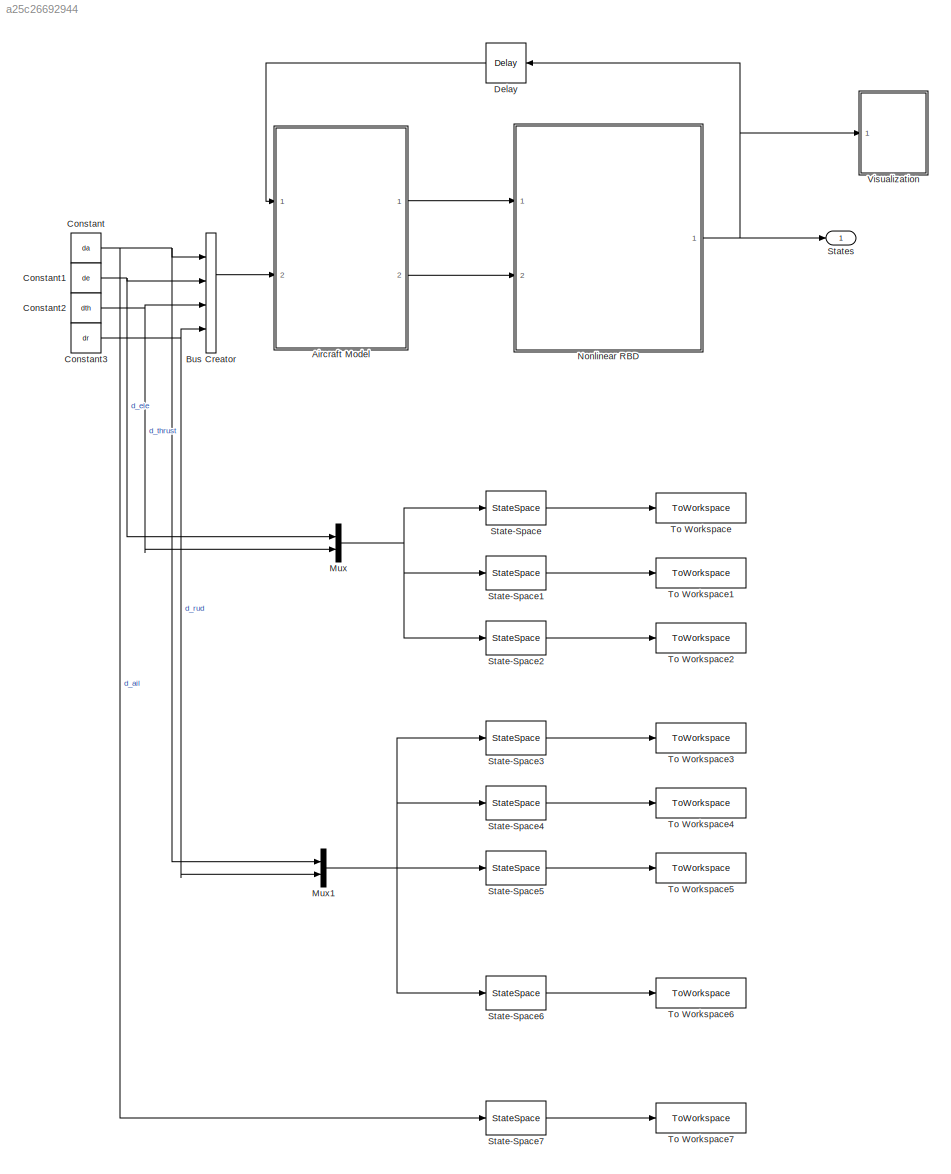
MODEL slx_a25c26692944
KIND model
CONFIG AbsTol = auto
CONFIG EnableMultiTasking = off
CONFIG FixedStep = dt
CONFIG MaxStep = auto
CONFIG MinStep = auto
CONFIG RelTol = 1e-3
CONFIG SampleTimeConstraint = Unconstrained
CONFIG Solver = ode4
CONFIG SolverName = ode4
CONFIG StartTime = 0.0
CONFIG StopTime = tfinal
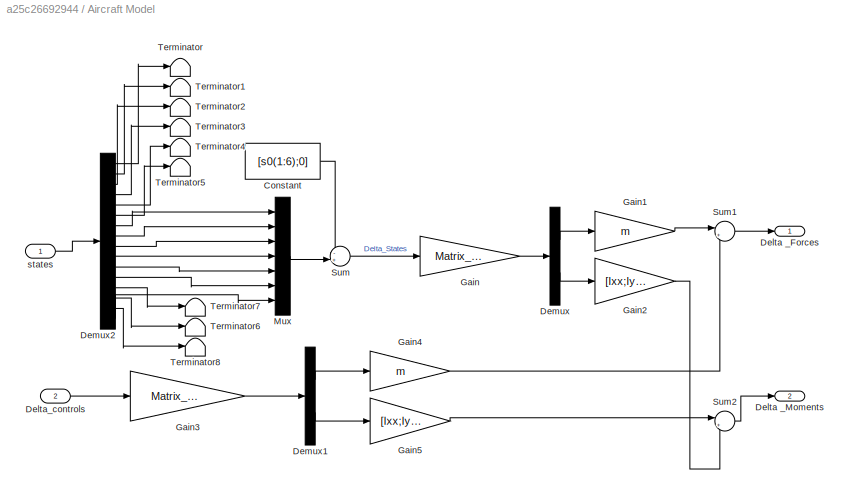
BLOCK [SubSystem] Aircraft Model
  Ports = [2, 2]
  RequestExecContextInheritance = off
BLOCK [Constant] Aircraft Model/Constant
  Value = [s0(1:6);0]
BLOCK [Outport] Aircraft Model/Delta _Forces
  IconDisplay = Port number
BLOCK [Outport] Aircraft Model/Delta _Moments
  IconDisplay = Port number
  Port = 2
BLOCK [Inport] Aircraft Model/Delta_controls
  IconDisplay = Port number
  Port = 2
BLOCK [Demux] Aircraft Model/Demux
  DisplayOption = bar
  Outputs = 2
  Ports = [1, 2]
BLOCK [Demux] Aircraft Model/Demux1
  DisplayOption = bar
  Outputs = 2
  Ports = [1, 2]
BLOCK [Demux] Aircraft Model/Demux2
  DisplayOption = bar
  Outputs = 16
  Ports = [1, 16]
BLOCK [Gain] Aircraft Model/Gain
  Gain = Matrix_states
  Multiplication = Matrix(K*u)
  OutDataTypeStr = Inherit: Inherit via internal rule
  ParamDataTypeStr = Inherit: Inherit via internal rule
  SaturateOnIntegerOverflow = off
BLOCK [Gain] Aircraft Model/Gain1
  Gain = m
  OutDataTypeStr = Inherit: Inherit via internal rule
  ParamDataTypeStr = Inherit: Inherit via internal rule
  SaturateOnIntegerOverflow = off
BLOCK [Gain] Aircraft Model/Gain2
  Gain = [Ixx;Iyy;Izz]
  OutDataTypeStr = Inherit: Inherit via internal rule
  ParamDataTypeStr = Inherit: Inherit via internal rule
  SaturateOnIntegerOverflow = off
BLOCK [Gain] Aircraft Model/Gain3
  Gain = Matrix_Controls
  Multiplication = Matrix(K*u)
  OutDataTypeStr = Inherit: Inherit via internal rule
  ParamDataTypeStr = Inherit: Inherit via internal rule
  SaturateOnIntegerOverflow = off
BLOCK [Gain] Aircraft Model/Gain4
  Gain = m
  OutDataTypeStr = Inherit: Inherit via internal rule
  ParamDataTypeStr = Inherit: Inherit via internal rule
  SaturateOnIntegerOverflow = off
BLOCK [Gain] Aircraft Model/Gain5
  Gain = [Ixx;Iyy;Izz]
  OutDataTypeStr = Inherit: Inherit via internal rule
  ParamDataTypeStr = Inherit: Inherit via internal rule
  SaturateOnIntegerOverflow = off
BLOCK [Mux] Aircraft Model/Mux
  DisplayOption = bar
  Inputs = 7
  Ports = [7, 1]
BLOCK [Sum] Aircraft Model/Sum
  IconShape = round
  InputSameDT = off
  Inputs = -+|
  OutDataTypeStr = Inherit: Inherit via internal rule
  Ports = [2, 1]
  SaturateOnIntegerOverflow = off
BLOCK [Sum] Aircraft Model/Sum1
  IconShape = round
  InputSameDT = off
  Inputs = |++
  OutDataTypeStr = Inherit: Inherit via internal rule
  Ports = [2, 1]
  SaturateOnIntegerOverflow = off
BLOCK [Sum] Aircraft Model/Sum2
  IconShape = round
  InputSameDT = off
  Inputs = |++
  OutDataTypeStr = Inherit: Inherit via internal rule
  Ports = [2, 1]
  SaturateOnIntegerOverflow = off
BLOCK [Terminator] Aircraft Model/Terminator
BLOCK [Terminator] Aircraft Model/Terminator1
BLOCK [Terminator] Aircraft Model/Terminator2
BLOCK [Terminator] Aircraft Model/Terminator3
BLOCK [Terminator] Aircraft Model/Terminator4
BLOCK [Terminator] Aircraft Model/Terminator5
BLOCK [Terminator] Aircraft Model/Terminator6
BLOCK [Terminator] Aircraft Model/Terminator7
BLOCK [Terminator] Aircraft Model/Terminator8
BLOCK [Inport] Aircraft Model/states
  IconDisplay = Port number
BLOCK [BusCreator] Bus Creator
  DisplayOption = bar
  InheritFromInputs = on
  Inputs = 4
  Ports = [4, 1]
BLOCK [Constant] Constant
  Value = da
BLOCK [Constant] Constant1
  Value = de
BLOCK [Constant] Constant2
  Value = dth
BLOCK [Constant] Constant3
  Value = dr
BLOCK [Delay] Delay
  DelayLength = 1
  InitialCondition = initial_conditions
  InputPortMap = u0
  Ports = [1, 1]
BLOCK [Mux] Mux
  DisplayOption = bar
  Inputs = 2
  Ports = [2, 1]
BLOCK [Mux] Mux1
  DisplayOption = bar
  Inputs = 2
  Ports = [2, 1]
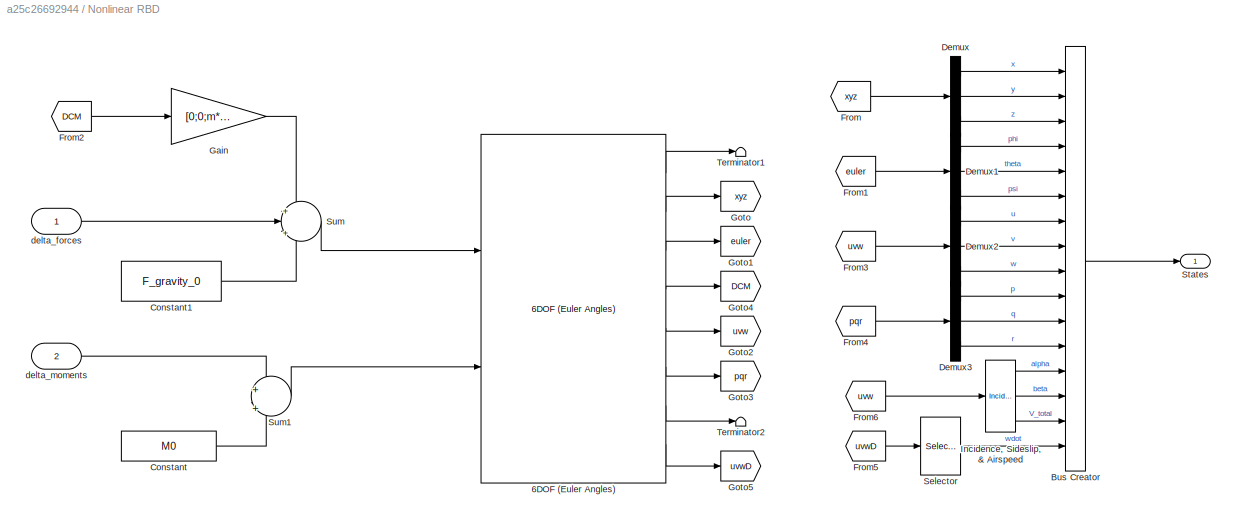
BLOCK [SubSystem] Nonlinear RBD
  Ports = [2, 1]
  RequestExecContextInheritance = off
BLOCK [Reference] Nonlinear RBD/6DOF (Euler Angles)  REF=shared6dof/6DOF (Euler Angles)
  Ports = [2, 8]
  SourceBlock = shared6dof/6DOF (Euler Angles)
  SourceProductBaseCode = AE
  SourceProductName = Aerospace Blockset
  SourceType = 6DOF EoM (Body Axis)
BLOCK [BusCreator] Nonlinear RBD/Bus Creator
  DisplayOption = bar
  InheritFromInputs = on
  Inputs = 16
  Ports = [16, 1]
BLOCK [Constant] Nonlinear RBD/Constant
  Value = M0
BLOCK [Constant] Nonlinear RBD/Constant1
  Value = F_gravity_0
BLOCK [Demux] Nonlinear RBD/Demux
  DisplayOption = bar
  Outputs = 3
  Ports = [1, 3]
BLOCK [Demux] Nonlinear RBD/Demux1
  DisplayOption = bar
  Outputs = 3
  Ports = [1, 3]
BLOCK [Demux] Nonlinear RBD/Demux2
  DisplayOption = bar
  Outputs = 3
  Ports = [1, 3]
BLOCK [Demux] Nonlinear RBD/Demux3
  DisplayOption = bar
  Outputs = 3
  Ports = [1, 3]
BLOCK [From] Nonlinear RBD/From
  GotoTag = xyz
BLOCK [From] Nonlinear RBD/From1
  GotoTag = euler
BLOCK [From] Nonlinear RBD/From2
  GotoTag = DCM
BLOCK [From] Nonlinear RBD/From3
  GotoTag = uvw
BLOCK [From] Nonlinear RBD/From4
  GotoTag = pqr
BLOCK [From] Nonlinear RBD/From5
  GotoTag = uvwD
BLOCK [From] Nonlinear RBD/From6
  GotoTag = uvw
BLOCK [Gain] Nonlinear RBD/Gain
  Gain = [0;0;m*32.174]
  Multiplication = Matrix(u*K)
  OutDataTypeStr = Inherit: Inherit via internal rule
  ParamDataTypeStr = Inherit: Inherit via internal rule
  SaturateOnIntegerOverflow = off
BLOCK [Goto] Nonlinear RBD/Goto
  GotoTag = xyz
BLOCK [Goto] Nonlinear RBD/Goto1
  GotoTag = euler
BLOCK [Goto] Nonlinear RBD/Goto2
  GotoTag = uvw
BLOCK [Goto] Nonlinear RBD/Goto3
  GotoTag = pqr
BLOCK [Goto] Nonlinear RBD/Goto4
  GotoTag = DCM
BLOCK [Goto] Nonlinear RBD/Goto5
  GotoTag = uvwD
BLOCK [Reference] Nonlinear RBD/Incidence, Sideslip, & Airspeed  REF=aerolibasang/Incidence, Sideslip,
& Airspeed
  Ports = [1, 3]
  SourceBlock = aerolibasang/Incidence, Sideslip,\n& Airspeed
  SourceProductBaseCode = AE
  SourceProductName = Aerospace Blockset
  SourceType = Incidence,Sideslip,&Airspeed
BLOCK [Selector] Nonlinear RBD/Selector
  IndexOptions = Index vector (dialog)
  Indices = [3]
  InputPortWidth = 3
  OutputSizes = 1
  Ports = [1, 1]
BLOCK [Outport] Nonlinear RBD/States
  IconDisplay = Port number
BLOCK [Sum] Nonlinear RBD/Sum
  IconShape = round
  InputSameDT = off
  Inputs = +||+||+
  OutDataTypeStr = Inherit: Inherit via internal rule
  Ports = [3, 1]
  SaturateOnIntegerOverflow = off
BLOCK [Sum] Nonlinear RBD/Sum1
  IconShape = round
  InputSameDT = off
  Inputs = +||+
  OutDataTypeStr = Inherit: Inherit via internal rule
  Ports = [2, 1]
  SaturateOnIntegerOverflow = off
BLOCK [Terminator] Nonlinear RBD/Terminator1
BLOCK [Terminator] Nonlinear RBD/Terminator2
BLOCK [Inport] Nonlinear RBD/delta_forces
  IconDisplay = Port number
BLOCK [Inport] Nonlinear RBD/delta_moments
  IconDisplay = Port number
  Port = 2
BLOCK [StateSpace] State-Space
  A = A_FL
  B = B_FL
  C = C_FL
  D = D_FL
  InitialCondition = [s0(1),s0(3),s0(5),s0(8)]
  Ports = [1, 1]
BLOCK [StateSpace] State-Space1
  A = A_LP
  B = B_LP
  C = C_LP
  D = D_LP
  InitialCondition = [s0(1),s0(8)]
  Ports = [1, 1]
BLOCK [StateSpace] State-Space2
  A = A_SP
  B = B_SP
  C = C_SP
  D = D_SP
  InitialCondition = [s0(3),s0(5)]
  Ports = [1, 1]
BLOCK [StateSpace] State-Space3
  A = A_lat
  B = B_lat
  C = C_lat
  D = D_lat
  InitialCondition = [aircraft_data(20),s0(4),s0(6),s0(7),s0(9)]
  Ports = [1, 1]
BLOCK [StateSpace] State-Space4
  A = A_Sp
  B = B_Sp
  C = C_Sp
  D = D_Sp
  InitialCondition = [s0(4),s0(6),s0(7)]
  Ports = [1, 1]
BLOCK [StateSpace] State-Space5
  A = A_DR
  B = B_DR
  C = C_DR
  D = D_DR
  InitialCondition = [aircraft_data(20),s0(4),s0(6)]
  Ports = [1, 1]
BLOCK [StateSpace] State-Space6
  A = A_2D
  B = B_2D
  C = C_2D
  D = D_2D
  InitialCondition = [aircraft_data(20),s0(6)]
  Ports = [1, 1]
BLOCK [StateSpace] State-Space7
  A = A_RO
  B = B_RO
  C = C_RO
  D = D_RO
  InitialCondition = [s0(4)]
  Ports = [1, 1]
BLOCK [Outport] States
  IconDisplay = Port number
BLOCK [ToWorkspace] To Workspace
  FixptAsFi = on
  MaxDataPoints = inf
  Ports = [1]
  SampleTime = -1
  Save2DSignal = 2-D array (concatenate along first dimension)
  VariableName = fullLong
BLOCK [ToWorkspace] To Workspace1
  FixptAsFi = on
  MaxDataPoints = inf
  Ports = [1]
  SampleTime = -1
  Save2DSignal = 2-D array (concatenate along first dimension)
  VariableName = longPeriod
BLOCK [ToWorkspace] To Workspace2
  FixptAsFi = on
  MaxDataPoints = inf
  Ports = [1]
  SampleTime = -1
  Save2DSignal = 2-D array (concatenate along first dimension)
  VariableName = shortPeriod
BLOCK [ToWorkspace] To Workspace3
  FixptAsFi = on
  MaxDataPoints = inf
  Ports = [1]
  SampleTime = -1
  Save2DSignal = 2-D array (concatenate along first dimension)
  VariableName = fullLat
BLOCK [ToWorkspace] To Workspace4
  FixptAsFi = on
  MaxDataPoints = inf
  Ports = [1]
  SampleTime = -1
  Save2DSignal = 2-D array (concatenate along first dimension)
  VariableName = SP
BLOCK [ToWorkspace] To Workspace5
  FixptAsFi = on
  MaxDataPoints = inf
  Ports = [1]
  SampleTime = -1
  Save2DSignal = 2-D array (concatenate along first dimension)
  VariableName = DR
BLOCK [ToWorkspace] To Workspace6
  FixptAsFi = on
  MaxDataPoints = inf
  Ports = [1]
  SampleTime = -1
  Save2DSignal = 2-D array (concatenate along first dimension)
  VariableName = DOF2
BLOCK [ToWorkspace] To Workspace7
  FixptAsFi = on
  MaxDataPoints = inf
  Ports = [1]
  SampleTime = -1
  Save2DSignal = 2-D array (concatenate along first dimension)
  VariableName = DOF1
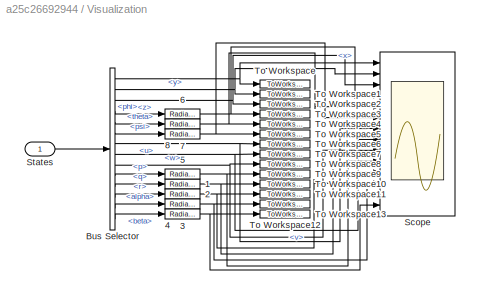
BLOCK [SubSystem] Visualization
  Ports = [1]
  RequestExecContextInheritance = off
BLOCK [Reference] Visualization/1  REF=simulink_extras/Transformations/Radians
to Degrees
  Ports = [1, 1]
  SourceBlock = simulink_extras/Transformations/Radians\nto Degrees
  SourceProductBaseCode = SL
  SourceProductName = Simulink
  SourceType = RadiansToDegrees
BLOCK [Reference] Visualization/2  REF=simulink_extras/Transformations/Radians
to Degrees
  Ports = [1, 1]
  SourceBlock = simulink_extras/Transformations/Radians\nto Degrees
  SourceProductBaseCode = SL
  SourceProductName = Simulink
  SourceType = RadiansToDegrees
BLOCK [Reference] Visualization/3  REF=simulink_extras/Transformations/Radians
to Degrees
  Ports = [1, 1]
  SourceBlock = simulink_extras/Transformations/Radians\nto Degrees
  SourceProductBaseCode = SL
  SourceProductName = Simulink
  SourceType = RadiansToDegrees
BLOCK [Reference] Visualization/4  REF=simulink_extras/Transformations/Radians
to Degrees
  Ports = [1, 1]
  SourceBlock = simulink_extras/Transformations/Radians\nto Degrees
  SourceProductBaseCode = SL
  SourceProductName = Simulink
  SourceType = RadiansToDegrees
BLOCK [Reference] Visualization/5  REF=simulink_extras/Transformations/Radians
to Degrees
  Ports = [1, 1]
  SourceBlock = simulink_extras/Transformations/Radians\nto Degrees
  SourceProductBaseCode = SL
  SourceProductName = Simulink
  SourceType = RadiansToDegrees
BLOCK [Reference] Visualization/6  REF=simulink_extras/Transformations/Radians
to Degrees
  Ports = [1, 1]
  SourceBlock = simulink_extras/Transformations/Radians\nto Degrees
  SourceProductBaseCode = SL
  SourceProductName = Simulink
  SourceType = RadiansToDegrees
BLOCK [Reference] Visualization/7  REF=simulink_extras/Transformations/Radians
to Degrees
  Ports = [1, 1]
  SourceBlock = simulink_extras/Transformations/Radians\nto Degrees
  SourceProductBaseCode = SL
  SourceProductName = Simulink
  SourceType = RadiansToDegrees
BLOCK [Reference] Visualization/8  REF=simulink_extras/Transformations/Radians
to Degrees
  Ports = [1, 1]
  SourceBlock = simulink_extras/Transformations/Radians\nto Degrees
  SourceProductBaseCode = SL
  SourceProductName = Simulink
  SourceType = RadiansToDegrees
BLOCK [BusSelector] Visualization/Bus Selector
  OutputAsBus = off
  OutputSignals = x,y,z,phi,theta,psi,u,v,w,p,q,r,alpha,beta
  Ports = [1, 14]
BLOCK [Scope] Visualization/Scope
  Floating = off
  NumInputPorts = 14
  Ports = [14]
  ScopeSpecificationString = Simulink.scopes.TimeScopeBlockCfg('CurrentConfiguration', extmgr.ConfigurationSet(extmgr.Configuration('Core','General UI',true),extmgr.Configuration('Core','Source UI',true),extmgr.Configuration('Sources','WiredSimulink',true),extmgr.Configuration('Visuals','Time Domain',true,'SerializedDisplays',{struct('MinYLimReal','-485.5764','MaxYLimReal','3809.09601','YLabelReal','','MinYLimMag',' 0.00000',...<+1402ch>
BLOCK [Inport] Visualization/States
  IconDisplay = Port number
BLOCK [ToWorkspace] Visualization/To Workspace
  FixptAsFi = on
  MaxDataPoints = inf
  Ports = [1]
  SampleTime = -1
  SaveFormat = Timeseries
  VariableName = out_x
BLOCK [ToWorkspace] Visualization/To Workspace1
  FixptAsFi = on
  MaxDataPoints = inf
  Ports = [1]
  SampleTime = -1
  SaveFormat = Timeseries
  VariableName = out_y
BLOCK [ToWorkspace] Visualization/To Workspace10
  FixptAsFi = on
  MaxDataPoints = inf
  Ports = [1]
  SampleTime = -1
  SaveFormat = Timeseries
  VariableName = out_q
BLOCK [ToWorkspace] Visualization/To Workspace11
  FixptAsFi = on
  MaxDataPoints = inf
  Ports = [1]
  SampleTime = -1
  SaveFormat = Timeseries
  VariableName = out_r
BLOCK [ToWorkspace] Visualization/To Workspace12
  FixptAsFi = on
  MaxDataPoints = inf
  Ports = [1]
  SampleTime = -1
  SaveFormat = Timeseries
  VariableName = out_alpha
BLOCK [ToWorkspace] Visualization/To Workspace13
  FixptAsFi = on
  MaxDataPoints = inf
  Ports = [1]
  SampleTime = -1
  SaveFormat = Timeseries
  VariableName = out_beta
BLOCK [ToWorkspace] Visualization/To Workspace2
  FixptAsFi = on
  MaxDataPoints = inf
  Ports = [1]
  SampleTime = -1
  SaveFormat = Timeseries
  VariableName = out_z
BLOCK [ToWorkspace] Visualization/To Workspace3
  FixptAsFi = on
  MaxDataPoints = inf
  Ports = [1]
  SampleTime = -1
  SaveFormat = Timeseries
  VariableName = out_phi
BLOCK [ToWorkspace] Visualization/To Workspace4
  FixptAsFi = on
  MaxDataPoints = inf
  Ports = [1]
  SampleTime = -1
  SaveFormat = Timeseries
  VariableName = out_theta
BLOCK [ToWorkspace] Visualization/To Workspace5
  FixptAsFi = on
  MaxDataPoints = inf
  Ports = [1]
  SampleTime = -1
  SaveFormat = Timeseries
  VariableName = out_psi
BLOCK [ToWorkspace] Visualization/To Workspace6
  FixptAsFi = on
  MaxDataPoints = inf
  Ports = [1]
  SampleTime = -1
  SaveFormat = Timeseries
  VariableName = out_u
BLOCK [ToWorkspace] Visualization/To Workspace7
  FixptAsFi = on
  MaxDataPoints = inf
  Ports = [1]
  SampleTime = -1
  SaveFormat = Timeseries
  VariableName = out_v
BLOCK [ToWorkspace] Visualization/To Workspace8
  FixptAsFi = on
  MaxDataPoints = inf
  Ports = [1]
  SampleTime = -1
  SaveFormat = Timeseries
  VariableName = out_w
BLOCK [ToWorkspace] Visualization/To Workspace9
  FixptAsFi = on
  MaxDataPoints = inf
  Ports = [1]
  SampleTime = -1
  SaveFormat = Timeseries
  VariableName = out_p
LINE Aircraft Model/Constant:1 -> Aircraft Model/Sum:1
LINE Aircraft Model/Delta_controls:1 -> Aircraft Model/Gain3:1
LINE Aircraft Model/Demux1:1 -> Aircraft Model/Gain4:1
LINE Aircraft Model/Demux1:2 -> Aircraft Model/Gain5:1
LINE Aircraft Model/Demux2:1 -> Aircraft Model/Terminator:1
LINE Aircraft Model/Demux2:10 -> Aircraft Model/Mux:4
LINE Aircraft Model/Demux2:11 -> Aircraft Model/Mux:5
LINE Aircraft Model/Demux2:12 -> Aircraft Model/Mux:6
LINE Aircraft Model/Demux2:13 -> Aircraft Model/Terminator7:1
LINE Aircraft Model/Demux2:14 -> Aircraft Model/Terminator6:1
LINE Aircraft Model/Demux2:15 -> Aircraft Model/Terminator8:1
LINE Aircraft Model/Demux2:16 -> Aircraft Model/Mux:7
LINE Aircraft Model/Demux2:2 -> Aircraft Model/Terminator1:1
LINE Aircraft Model/Demux2:3 -> Aircraft Model/Terminator2:1
LINE Aircraft Model/Demux2:4 -> Aircraft Model/Terminator3:1
LINE Aircraft Model/Demux2:5 -> Aircraft Model/Terminator4:1
LINE Aircraft Model/Demux2:6 -> Aircraft Model/Terminator5:1
LINE Aircraft Model/Demux2:7 -> Aircraft Model/Mux:1
LINE Aircraft Model/Demux2:8 -> Aircraft Model/Mux:2
LINE Aircraft Model/Demux2:9 -> Aircraft Model/Mux:3
LINE Aircraft Model/Demux:1 -> Aircraft Model/Gain1:1
LINE Aircraft Model/Demux:2 -> Aircraft Model/Gain2:1
LINE Aircraft Model/Gain1:1 -> Aircraft Model/Sum1:1
LINE Aircraft Model/Gain2:1 -> Aircraft Model/Sum2:2
LINE Aircraft Model/Gain3:1 -> Aircraft Model/Demux1:1
LINE Aircraft Model/Gain4:1 -> Aircraft Model/Sum1:2
LINE Aircraft Model/Gain5:1 -> Aircraft Model/Sum2:1
LINE Aircraft Model/Gain:1 -> Aircraft Model/Demux:1
LINE Aircraft Model/Mux:1 -> Aircraft Model/Sum:2
LINE Aircraft Model/Sum1:1 -> Aircraft Model/Delta _Forces:1
LINE Aircraft Model/Sum2:1 -> Aircraft Model/Delta _Moments:1
LINE Aircraft Model/Sum:1 -> Aircraft Model/Gain:1
LINE Aircraft Model/states:1 -> Aircraft Model/Demux2:1
LINE Aircraft Model:1 -> Nonlinear RBD:1
LINE Aircraft Model:2 -> Nonlinear RBD:2
LINE Bus Creator:1 -> Aircraft Model:2
NET Constant1:1 -> Bus Creator:2, Mux:1
NET Constant2:1 -> Bus Creator:3, Mux:2
NET Constant3:1 -> Bus Creator:4, Mux1:2
NET Constant:1 -> Bus Creator:1, Mux1:1, State-Space7:1
LINE Delay:1 -> Aircraft Model:1
NET Mux1:1 -> State-Space3:1, State-Space4:1, State-Space5:1, State-Space6:1
NET Mux:1 -> State-Space1:1, State-Space2:1, State-Space:1
LINE Nonlinear RBD/6DOF (Euler Angles):1 -> Nonlinear RBD/Terminator1:1
LINE Nonlinear RBD/6DOF (Euler Angles):2 -> Nonlinear RBD/Goto:1
LINE Nonlinear RBD/6DOF (Euler Angles):3 -> Nonlinear RBD/Goto1:1
LINE Nonlinear RBD/6DOF (Euler Angles):4 -> Nonlinear RBD/Goto4:1
LINE Nonlinear RBD/6DOF (Euler Angles):5 -> Nonlinear RBD/Goto2:1
LINE Nonlinear RBD/6DOF (Euler Angles):6 -> Nonlinear RBD/Goto3:1
LINE Nonlinear RBD/6DOF (Euler Angles):7 -> Nonlinear RBD/Terminator2:1
LINE Nonlinear RBD/6DOF (Euler Angles):8 -> Nonlinear RBD/Goto5:1
LINE Nonlinear RBD/Bus Creator:1 -> Nonlinear RBD/States:1
LINE Nonlinear RBD/Constant1:1 -> Nonlinear RBD/Sum:3
LINE Nonlinear RBD/Constant:1 -> Nonlinear RBD/Sum1:2
LINE Nonlinear RBD/Demux1:1 -> Nonlinear RBD/Bus Creator:4
LINE Nonlinear RBD/Demux1:2 -> Nonlinear RBD/Bus Creator:5
LINE Nonlinear RBD/Demux1:3 -> Nonlinear RBD/Bus Creator:6
LINE Nonlinear RBD/Demux2:1 -> Nonlinear RBD/Bus Creator:7
LINE Nonlinear RBD/Demux2:2 -> Nonlinear RBD/Bus Creator:8
LINE Nonlinear RBD/Demux2:3 -> Nonlinear RBD/Bus Creator:9
LINE Nonlinear RBD/Demux3:1 -> Nonlinear RBD/Bus Creator:10
LINE Nonlinear RBD/Demux3:2 -> Nonlinear RBD/Bus Creator:11
LINE Nonlinear RBD/Demux3:3 -> Nonlinear RBD/Bus Creator:12
LINE Nonlinear RBD/Demux:1 -> Nonlinear RBD/Bus Creator:1
LINE Nonlinear RBD/Demux:2 -> Nonlinear RBD/Bus Creator:2
LINE Nonlinear RBD/Demux:3 -> Nonlinear RBD/Bus Creator:3
LINE Nonlinear RBD/From1:1 -> Nonlinear RBD/Demux1:1
LINE Nonlinear RBD/From2:1 -> Nonlinear RBD/Gain:1
LINE Nonlinear RBD/From3:1 -> Nonlinear RBD/Demux2:1
LINE Nonlinear RBD/From4:1 -> Nonlinear RBD/Demux3:1
LINE Nonlinear RBD/From5:1 -> Nonlinear RBD/Selector:1
LINE Nonlinear RBD/From6:1 -> Nonlinear RBD/Incidence, Sideslip, & Airspeed:1
LINE Nonlinear RBD/From:1 -> Nonlinear RBD/Demux:1
LINE Nonlinear RBD/Gain:1 -> Nonlinear RBD/Sum:1
LINE Nonlinear RBD/Incidence, Sideslip, & Airspeed:1 -> Nonlinear RBD/Bus Creator:13
LINE Nonlinear RBD/Incidence, Sideslip, & Airspeed:2 -> Nonlinear RBD/Bus Creator:14
LINE Nonlinear RBD/Incidence, Sideslip, & Airspeed:3 -> Nonlinear RBD/Bus Creator:15
LINE Nonlinear RBD/Selector:1 -> Nonlinear RBD/Bus Creator:16
LINE Nonlinear RBD/Sum1:1 -> Nonlinear RBD/6DOF (Euler Angles):2
LINE Nonlinear RBD/Sum:1 -> Nonlinear RBD/6DOF (Euler Angles):1
LINE Nonlinear RBD/delta_forces:1 -> Nonlinear RBD/Sum:2
LINE Nonlinear RBD/delta_moments:1 -> Nonlinear RBD/Sum1:1
NET Nonlinear RBD:1 -> Delay:1, States:1, Visualization:1
LINE State-Space1:1 -> To Workspace1:1
LINE State-Space2:1 -> To Workspace2:1
LINE State-Space3:1 -> To Workspace3:1
LINE State-Space4:1 -> To Workspace4:1
LINE State-Space5:1 -> To Workspace5:1
LINE State-Space6:1 -> To Workspace6:1
LINE State-Space7:1 -> To Workspace7:1
LINE State-Space:1 -> To Workspace:1
NET Visualization/1:1 -> Visualization/Scope:11, Visualization/To Workspace10:1
NET Visualization/2:1 -> Visualization/Scope:12, Visualization/To Workspace11:1
NET Visualization/3:1 -> Visualization/Scope:13, Visualization/To Workspace12:1
NET Visualization/4:1 -> Visualization/Scope:14, Visualization/To Workspace13:1
NET Visualization/5:1 -> Visualization/Scope:10, Visualization/To Workspace9:1
NET Visualization/6:1 -> Visualization/Scope:4, Visualization/To Workspace3:1
NET Visualization/7:1 -> Visualization/Scope:5, Visualization/To Workspace4:1
NET Visualization/8:1 -> Visualization/Scope:6, Visualization/To Workspace5:1
NET Visualization/Bus Selector:1 -> Visualization/Scope:1, Visualization/To Workspace:1
LINE Visualization/Bus Selector:10 -> Visualization/5:1
LINE Visualization/Bus Selector:11 -> Visualization/1:1
LINE Visualization/Bus Selector:12 -> Visualization/2:1
LINE Visualization/Bus Selector:13 -> Visualization/3:1
LINE Visualization/Bus Selector:14 -> Visualization/4:1
NET Visualization/Bus Selector:2 -> Visualization/Scope:2, Visualization/To Workspace1:1
NET Visualization/Bus Selector:3 -> Visualization/Scope:3, Visualization/To Workspace2:1
LINE Visualization/Bus Selector:4 -> Visualization/6:1
LINE Visualization/Bus Selector:5 -> Visualization/7:1
LINE Visualization/Bus Selector:6 -> Visualization/8:1
NET Visualization/Bus Selector:7 -> Visualization/Scope:7, Visualization/To Workspace6:1
NET Visualization/Bus Selector:8 -> Visualization/Scope:8, Visualization/To Workspace7:1
NET Visualization/Bus Selector:9 -> Visualization/Scope:9, Visualization/To Workspace8:1
LINE Visualization/States:1 -> Visualization/Bus Selector:1
note: NET lines group one-source signal fan-out (src -> all destinations, sorted); 1:1 wires keep LINE
